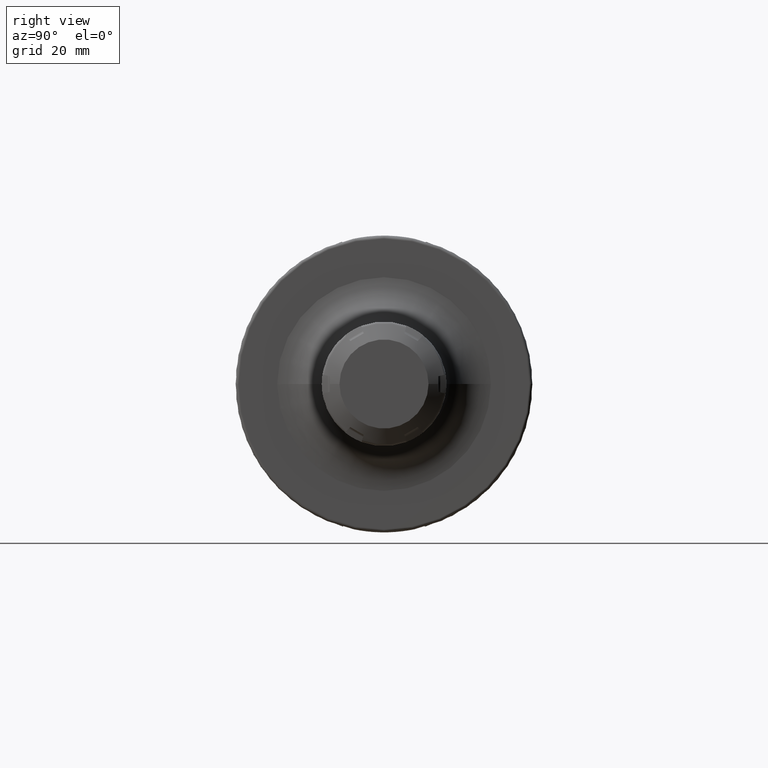
[diagram: clean part render]
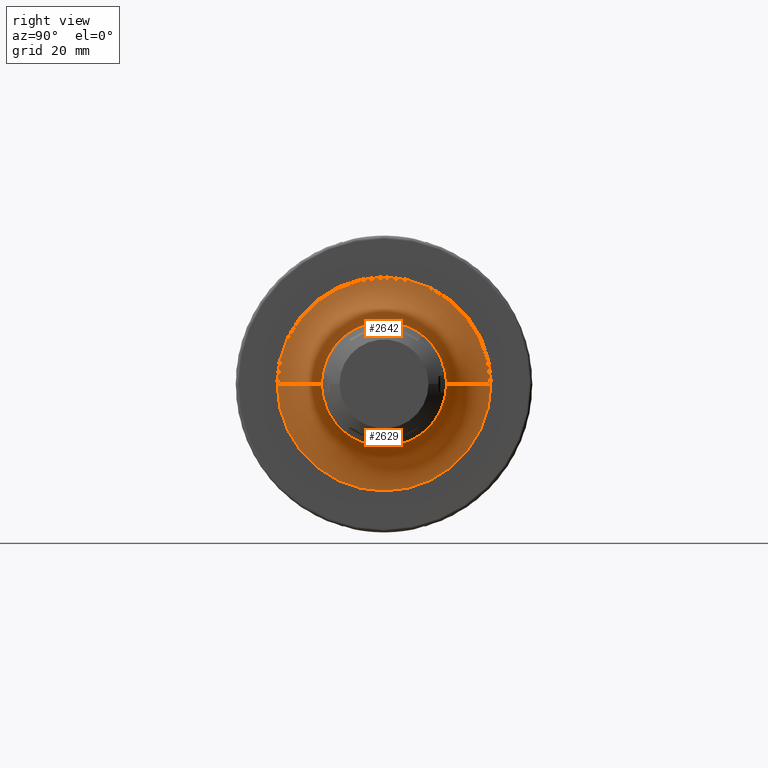
[diagram: same view with one multi-face feature highlighted, each face labeled with its STEP entity id]
A machine part, right view. The highlighted faces form ONE feature: a constant-radius fillet chain: 2 tangent blend faces with common blend radius 15 mm. The faces share edges in the B-rep.
Their STEP definitions:
[1] entity #2642 (Torus):
#839=CARTESIAN_POINT('',(3.8E1,0.E0,0.E0));
#840=DIRECTION('',(1.E0,0.E0,0.E0));
#841=DIRECTION('',(0.E0,1.E0,0.E0));
#842=AXIS2_PLACEMENT_3D('',#839,#840,#841);
#844=CARTESIAN_POINT('',(5.3E1,-3.6E1,4.719780122286E-12));
#845=DIRECTION('',(0.E0,-1.311069308674E-13,-1.E0));
#846=DIRECTION('',(-1.E0,0.E0,0.E0));
#847=AXIS2_PLACEMENT_3D('',#844,#845,#846);
#849=CARTESIAN_POINT('',(5.3E1,3.6E1,-4.723887947478E-12));
#850=DIRECTION('',(0.E0,1.312196878933E-13,1.E0));
#851=DIRECTION('',(-1.E0,0.E0,0.E0));
#852=AXIS2_PLACEMENT_3D('',#849,#850,#851);
#859=CARTESIAN_POINT('',(5.3E1,0.E0,0.E0));
#860=DIRECTION('',(1.E0,0.E0,0.E0));
#861=DIRECTION('',(0.E0,1.E0,0.E0));
#862=AXIS2_PLACEMENT_3D('',#859,#860,#861);
#1463=CARTESIAN_POINT('',(3.8E1,-3.6E1,0.E0));
#1464=CARTESIAN_POINT('',(3.8E1,3.6E1,0.E0));
#1465=VERTEX_POINT('',#1463);
#1466=VERTEX_POINT('',#1464);
#1467=CARTESIAN_POINT('',(5.3E1,-2.1E1,0.E0));
#1468=CARTESIAN_POINT('',(5.3E1,2.1E1,0.E0));
#1469=VERTEX_POINT('',#1467);
#1470=VERTEX_POINT('',#1468);
#2630=CARTESIAN_POINT('',(5.3E1,0.E0,0.E0));
#2631=DIRECTION('',(1.E0,0.E0,0.E0));
#2632=DIRECTION('',(0.E0,9.999731921857E-1,-7.322220282677E-3));
#2633=AXIS2_PLACEMENT_3D('',#2630,#2631,#2632);
#2634=TOROIDAL_SURFACE('',#2633,3.6E1,1.5E1);
#2635=ORIENTED_EDGE('',*,*,#2610,.F.);
#2636=ORIENTED_EDGE('',*,*,#2625,.T.);
#2638=ORIENTED_EDGE('',*,*,#2637,.T.);
#2639=ORIENTED_EDGE('',*,*,#2621,.F.);
#2640=EDGE_LOOP('',(#2635,#2636,#2638,#2639));
#2641=FACE_OUTER_BOUND('',#2640,.F.);
#2642=ADVANCED_FACE('',(#2641),#2634,.F.);
#843=CIRCLE('',#842,3.6E1);
#848=CIRCLE('',#847,1.5E1);
#853=CIRCLE('',#852,1.5E1);
#863=CIRCLE('',#862,2.1E1);
#2610=EDGE_CURVE('',#1466,#1465,#843,.T.);
#2621=EDGE_CURVE('',#1465,#1469,#848,.T.);
#2625=EDGE_CURVE('',#1466,#1470,#853,.T.);
#2637=EDGE_CURVE('',#1470,#1469,#863,.T.);
[2] entity #2629 (Torus):
#834=CARTESIAN_POINT('',(3.8E1,0.E0,0.E0));
#835=DIRECTION('',(1.E0,0.E0,0.E0));
#836=DIRECTION('',(0.E0,-1.E0,0.E0));
#837=AXIS2_PLACEMENT_3D('',#834,#835,#836);
#844=CARTESIAN_POINT('',(5.3E1,-3.6E1,4.719780122286E-12));
#845=DIRECTION('',(0.E0,-1.311069308674E-13,-1.E0));
#846=DIRECTION('',(-1.E0,0.E0,0.E0));
#847=AXIS2_PLACEMENT_3D('',#844,#845,#846);
#849=CARTESIAN_POINT('',(5.3E1,3.6E1,-4.723887947478E-12));
#850=DIRECTION('',(0.E0,1.312196878933E-13,1.E0));
#851=DIRECTION('',(-1.E0,0.E0,0.E0));
#852=AXIS2_PLACEMENT_3D('',#849,#850,#851);
#883=CARTESIAN_POINT('',(5.3E1,0.E0,0.E0));
#884=DIRECTION('',(1.E0,0.E0,0.E0));
#885=DIRECTION('',(0.E0,-1.E0,0.E0));
#886=AXIS2_PLACEMENT_3D('',#883,#884,#885);
#1463=CARTESIAN_POINT('',(3.8E1,-3.6E1,0.E0));
#1464=CARTESIAN_POINT('',(3.8E1,3.6E1,0.E0));
#1465=VERTEX_POINT('',#1463);
#1466=VERTEX_POINT('',#1464);
#1467=CARTESIAN_POINT('',(5.3E1,-2.1E1,0.E0));
#1468=CARTESIAN_POINT('',(5.3E1,2.1E1,0.E0));
#1469=VERTEX_POINT('',#1467);
#1470=VERTEX_POINT('',#1468);
#2615=CARTESIAN_POINT('',(5.3E1,0.E0,0.E0));
#2616=DIRECTION('',(1.E0,0.E0,0.E0));
#2617=DIRECTION('',(0.E0,-9.999731921857E-1,7.322220282676E-3));
#2618=AXIS2_PLACEMENT_3D('',#2615,#2616,#2617);
#2619=TOROIDAL_SURFACE('',#2618,3.6E1,1.5E1);
#2620=ORIENTED_EDGE('',*,*,#2608,.F.);
#2622=ORIENTED_EDGE('',*,*,#2621,.T.);
#2624=ORIENTED_EDGE('',*,*,#2623,.T.);
#2626=ORIENTED_EDGE('',*,*,#2625,.F.);
#2627=EDGE_LOOP('',(#2620,#2622,#2624,#2626));
#2628=FACE_OUTER_BOUND('',#2627,.F.);
#2629=ADVANCED_FACE('',(#2628),#2619,.F.);
#838=CIRCLE('',#837,3.6E1);
#848=CIRCLE('',#847,1.5E1);
#853=CIRCLE('',#852,1.5E1);
#887=CIRCLE('',#886,2.1E1);
#2608=EDGE_CURVE('',#1465,#1466,#838,.T.);
#2621=EDGE_CURVE('',#1465,#1469,#848,.T.);
#2623=EDGE_CURVE('',#1469,#1470,#887,.T.);
#2625=EDGE_CURVE('',#1466,#1470,#853,.T.);